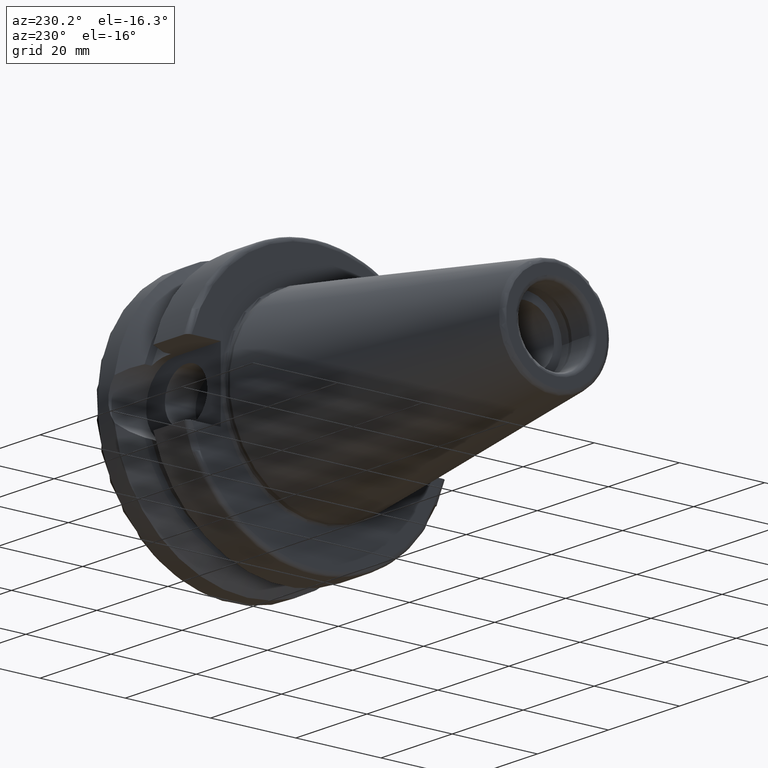
[diagram: clean part render]
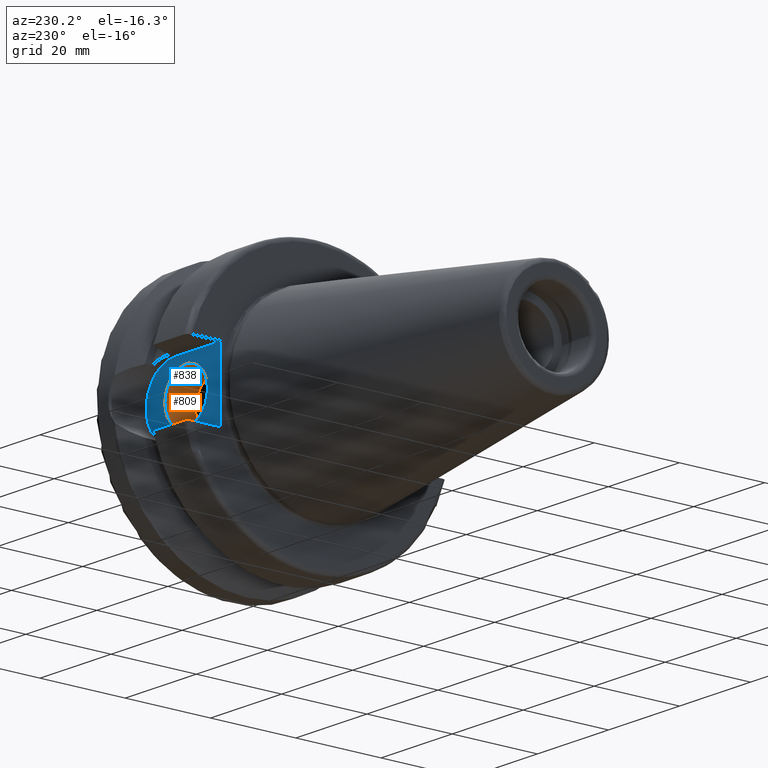
[diagram: same view with the hole feature highlighted: cylindrical wall and planar end face, labeled with their STEP entity ids]
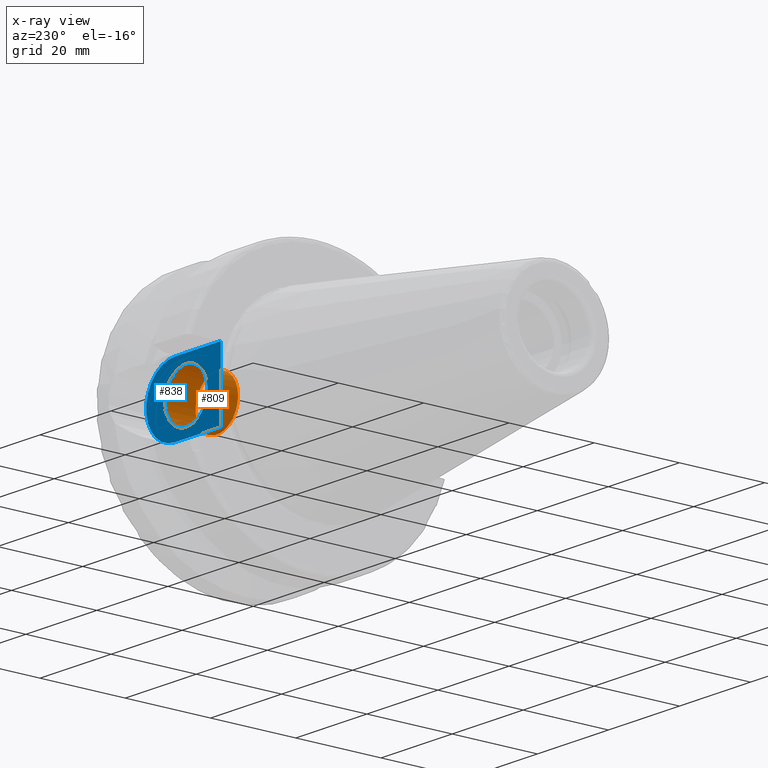
[diagram: x-ray of the same camera — body ghosted, the hole faces saturated]
A machine part, auxiliary view. The highlighted faces form one hole feature of diameter 12 mm: the cylindrical wall (entity #809, orange) and its adjacent planar end face (entity #838, blue) — they share a circular edge in the B-rep.
The next image is the same camera in x-ray (body ghosted, the hole faces saturated) — the bore reads through the body.
Wall:
#79=FACE_OUTER_BOUND('',#129,.T.);
#129=EDGE_LOOP('',(#543,#544,#545,#546));
#188=LINE('',#1263,#232);
#232=VECTOR('',#998,6.);
#276=CIRCLE('',#883,6.);
#277=CIRCLE('',#884,6.);
#336=VERTEX_POINT('',#1260);
#337=VERTEX_POINT('',#1262);
#418=EDGE_CURVE('',#336,#336,#276,.T.);
#419=EDGE_CURVE('',#336,#337,#188,.T.);
#420=EDGE_CURVE('',#337,#337,#277,.T.);
#543=ORIENTED_EDGE('',*,*,#418,.F.);
#544=ORIENTED_EDGE('',*,*,#419,.T.);
#545=ORIENTED_EDGE('',*,*,#420,.F.);
#546=ORIENTED_EDGE('',*,*,#419,.F.);
#793=CYLINDRICAL_SURFACE('',#882,6.);
#809=ADVANCED_FACE('',(#79),#793,.F.);
#882=AXIS2_PLACEMENT_3D('',#1259,#994,#995);
#883=AXIS2_PLACEMENT_3D('',#1261,#996,#997);
#884=AXIS2_PLACEMENT_3D('',#1264,#999,#1000);
#994=DIRECTION('center_axis',(0.,1.,0.));
#995=DIRECTION('ref_axis',(1.,0.,0.));
#996=DIRECTION('center_axis',(0.,-1.,0.));
#997=DIRECTION('ref_axis',(1.,0.,0.));
#998=DIRECTION('',(0.,-1.,0.));
#999=DIRECTION('center_axis',(0.,1.,0.));
#1000=DIRECTION('ref_axis',(1.,0.,0.));
#1259=CARTESIAN_POINT('Origin',(11.75,19.,0.));
#1260=CARTESIAN_POINT('',(5.75,22.6,7.34788079488412E-16));
#1261=CARTESIAN_POINT('Origin',(11.75,22.6,0.));
#1262=CARTESIAN_POINT('',(5.75,15.4,7.34788079488412E-16));
#1263=CARTESIAN_POINT('',(5.75,19.,7.34788079488412E-16));
#1264=CARTESIAN_POINT('Origin',(11.75,15.4,0.));
End face:
#58=FACE_BOUND('',#164,.T.);
#73=PLANE('',#946);
#108=FACE_OUTER_BOUND('',#163,.T.);
#163=EDGE_LOOP('',(#698,#699,#700,#701));
#164=EDGE_LOOP('',(#702));
#217=LINE('',#1550,#261);
#224=LINE('',#1593,#268);
#225=LINE('',#1595,#269);
#261=VECTOR('',#1145,10.);
#268=VECTOR('',#1158,10.);
#269=VECTOR('',#1161,10.);
#276=CIRCLE('',#883,6.);
#310=CIRCLE('',#944,8.05);
#336=VERTEX_POINT('',#1260);
#394=VERTEX_POINT('',#1547);
#395=VERTEX_POINT('',#1549);
#402=VERTEX_POINT('',#1587);
#403=VERTEX_POINT('',#1591);
#418=EDGE_CURVE('',#336,#336,#276,.T.);
#498=EDGE_CURVE('',#395,#394,#217,.T.);
#508=EDGE_CURVE('',#394,#402,#310,.T.);
#510=EDGE_CURVE('',#402,#403,#224,.T.);
#511=EDGE_CURVE('',#395,#403,#225,.T.);
#698=ORIENTED_EDGE('',*,*,#510,.T.);
#699=ORIENTED_EDGE('',*,*,#511,.F.);
#700=ORIENTED_EDGE('',*,*,#498,.T.);
#701=ORIENTED_EDGE('',*,*,#508,.T.);
#702=ORIENTED_EDGE('',*,*,#418,.T.);
#838=ADVANCED_FACE('',(#108,#58),#73,.T.);
#883=AXIS2_PLACEMENT_3D('',#1261,#996,#997);
#944=AXIS2_PLACEMENT_3D('',#1589,#1153,#1154);
#946=AXIS2_PLACEMENT_3D('',#1594,#1159,#1160);
#996=DIRECTION('center_axis',(0.,-1.,0.));
#997=DIRECTION('ref_axis',(1.,0.,0.));
#1145=DIRECTION('',(1.,0.,8.57315076930623E-17));
#1153=DIRECTION('center_axis',(0.,1.,0.));
#1154=DIRECTION('ref_axis',(0.,0.,1.));
#1158=DIRECTION('',(-1.,0.,-8.57315076930623E-17));
#1159=DIRECTION('center_axis',(0.,1.,0.));
#1160=DIRECTION('ref_axis',(0.,0.,1.));
#1161=DIRECTION('',(0.,0.,-1.));
#1260=CARTESIAN_POINT('',(5.75,22.6,7.34788079488412E-16));
#1261=CARTESIAN_POINT('Origin',(11.75,22.6,0.));
#1547=CARTESIAN_POINT('',(14.95,22.6,8.05));
#1549=CARTESIAN_POINT('',(1.99999999999999,22.6,8.05));
#1550=CARTESIAN_POINT('',(1.99999999999999,22.6,8.05));
#1587=CARTESIAN_POINT('',(14.95,22.6,-8.05));
#1589=CARTESIAN_POINT('Origin',(14.95,22.6,0.));
#1591=CARTESIAN_POINT('',(1.99999999999999,22.6,-8.05));
#1593=CARTESIAN_POINT('',(14.95,22.6,-8.05));
#1594=CARTESIAN_POINT('Origin',(12.5,22.6,0.));
#1595=CARTESIAN_POINT('',(1.99999999999999,22.6,0.));